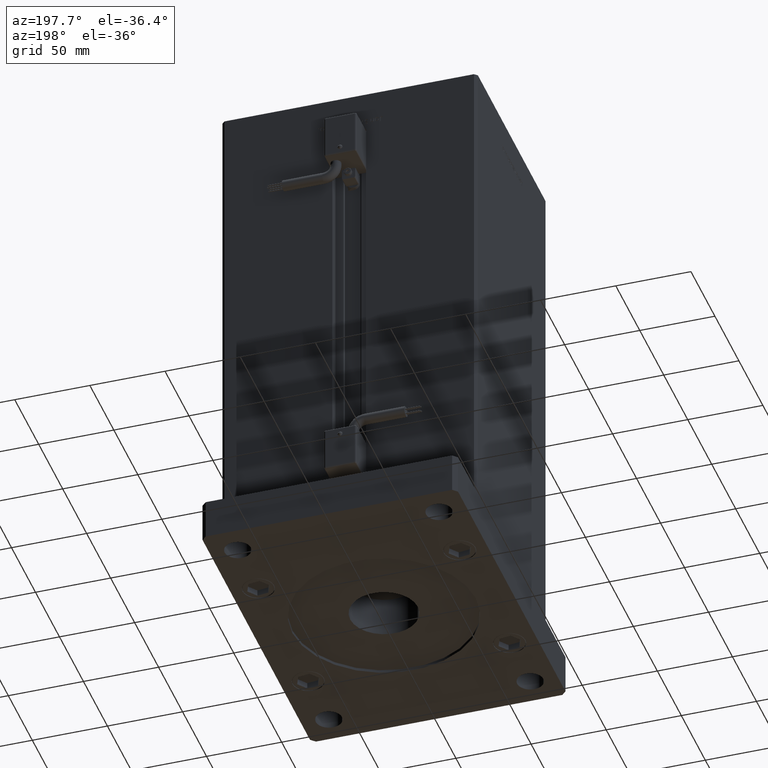
[diagram: clean part render]
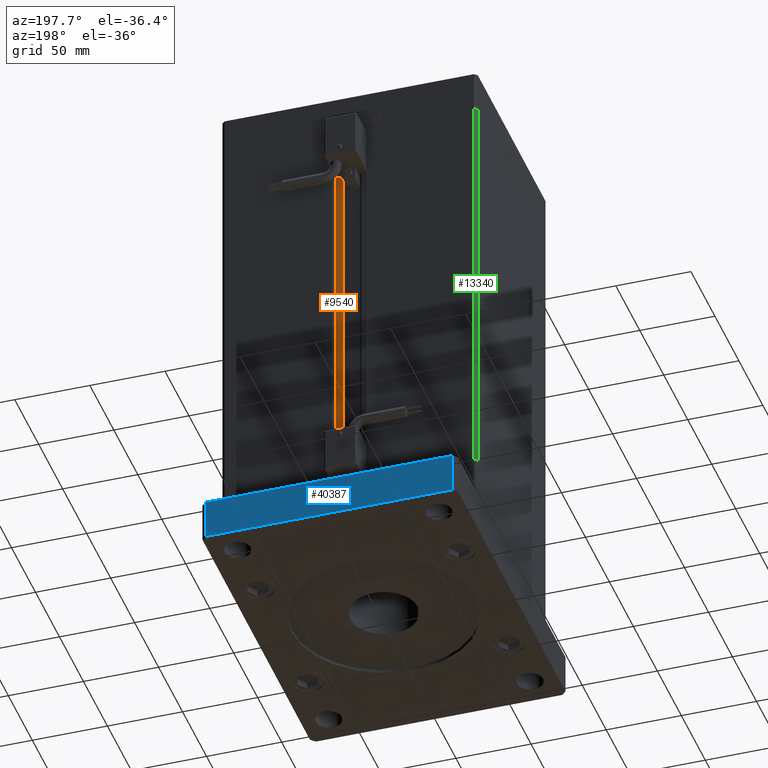
[diagram: same view with three faces highlighted in distinct colors, each labeled with its STEP entity id]
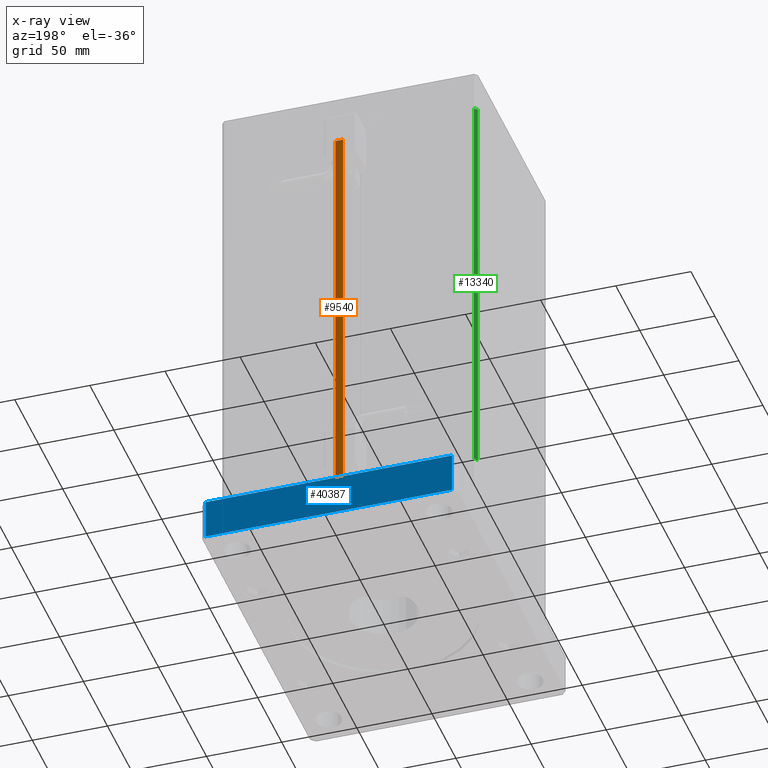
[diagram: x-ray of the same camera — body ghosted, the three highlighted faces saturated]
A machine part, auxiliary view with three faces highlighted in distinct colors.
The next image is the same camera in x-ray (body ghosted, the three faces saturated) — at least one of them is partly hidden behind the body in this view.
Their STEP definitions:

[orange] entity #9540 — the highlighted planar face has unit normal (-0, -1, 0).
#273 = VERTEX_POINT ( 'NONE', #3161 ) ;
#1353 = DIRECTION ( 'NONE',  ( -2.739037067332160936E-15, -1.000000000000000000, 0.000000000000000000 ) ) ;
#1769 = EDGE_CURVE ( 'NONE', #27092, #273, #37226, .T. ) ;
#2739 = VECTOR ( 'NONE', #46239, 1000.000000000000000 ) ;
#3161 = CARTESIAN_POINT ( 'NONE',  ( 11.25000000000000178, 65.99999999999997158, 0.000000000000000000 ) ) ;
#4197 = ORIENTED_EDGE ( 'NONE', *, *, #39125, .F. ) ;
#5029 = EDGE_CURVE ( 'NONE', #40482, #15717, #43559, .T. ) ;
#8461 = CARTESIAN_POINT ( 'NONE',  ( 11.25000000000000178, 65.99999999999997158, 276.0000000000000000 ) ) ;
#9540 = ADVANCED_FACE ( 'NONE', ( #53806 ), #35566, .F. ) ;
#10176 = DIRECTION ( 'NONE',  ( 1.000000000000000000, -2.739037067332160936E-15, 0.000000000000000000 ) ) ;
#13864 = CARTESIAN_POINT ( 'NONE',  ( 6.183333333334001480, 65.99999999999998579, 0.000000000000000000 ) ) ;
#14232 = ORIENTED_EDGE ( 'NONE', *, *, #25278, .T. ) ;
#14541 = ORIENTED_EDGE ( 'NONE', *, *, #1769, .F. ) ;
#15270 = DIRECTION ( 'NONE',  ( 1.000000000000000000, -2.739037067332160936E-15, 0.000000000000000000 ) ) ;
#15717 = VERTEX_POINT ( 'NONE', #51230 ) ;
#16801 = LINE ( 'NONE', #56147, #53357 ) ;
#18681 = CARTESIAN_POINT ( 'NONE',  ( 6.183333333334001480, 65.99999999999998579, 0.000000000000000000 ) ) ;
#23706 = LINE ( 'NONE', #32555, #2739 ) ;
#25278 = EDGE_CURVE ( 'NONE', #27092, #15717, #16801, .T. ) ;
#27092 = VERTEX_POINT ( 'NONE', #13864 ) ;
#29649 = DIRECTION ( 'NONE',  ( -0.000000000000000000, -0.000000000000000000, 1.000000000000000000 ) ) ;
#32136 = CARTESIAN_POINT ( 'NONE',  ( 6.183333333334001480, 65.99999999999998579, 0.000000000000000000 ) ) ;
#32555 = CARTESIAN_POINT ( 'NONE',  ( 11.25000000000000178, 65.99999999999997158, 0.000000000000000000 ) ) ;
#34684 = AXIS2_PLACEMENT_3D ( 'NONE', #32136, #1353, #10176 ) ;
#34811 = ORIENTED_EDGE ( 'NONE', *, *, #5029, .F. ) ;
#35566 = PLANE ( 'NONE',  #34684 ) ;
#37226 = LINE ( 'NONE', #18681, #47210 ) ;
#39125 = EDGE_CURVE ( 'NONE', #273, #40482, #23706, .T. ) ;
#40482 = VERTEX_POINT ( 'NONE', #8461 ) ;
#43559 = LINE ( 'NONE', #52665, #45491 ) ;
#44107 = DIRECTION ( 'NONE',  ( -1.000000000000000000, 2.739037067332160936E-15, 0.000000000000000000 ) ) ;
#45491 = VECTOR ( 'NONE', #44107, 1000.000000000000000 ) ;
#46239 = DIRECTION ( 'NONE',  ( -0.000000000000000000, -0.000000000000000000, 1.000000000000000000 ) ) ;
#47210 = VECTOR ( 'NONE', #15270, 1000.000000000000000 ) ;
#48230 = EDGE_LOOP ( 'NONE', ( #4197, #14541, #14232, #34811 ) ) ;
#51230 = CARTESIAN_POINT ( 'NONE',  ( 6.183333333334002369, 65.99999999999998579, 276.0000000000000000 ) ) ;
#52665 = CARTESIAN_POINT ( 'NONE',  ( 1.807764464439226107E-13, 66.00000000000000000, 276.0000000000000000 ) ) ;
#53357 = VECTOR ( 'NONE', #29649, 1000.000000000000000 ) ;
#53806 = FACE_OUTER_BOUND ( 'NONE', #48230, .T. ) ;
#56147 = CARTESIAN_POINT ( 'NONE',  ( 6.183333333334001480, 65.99999999999998579, 0.000000000000000000 ) ) ;

[blue] entity #40387 — the highlighted planar face has unit normal (0, -1, 0).
#2113 = CARTESIAN_POINT ( 'NONE',  ( 82.00000000000004263, 115.0000000000000284, 0.000000000000000000 ) ) ;
#2402 = EDGE_CURVE ( 'NONE', #12992, #50836, #45647, .T. ) ;
#2516 = PLANE ( 'NONE',  #49239 ) ;
#3421 = CARTESIAN_POINT ( 'NONE',  ( 82.00000000000004263, 115.0000000000000284, 27.00000000000000000 ) ) ;
#4783 = EDGE_CURVE ( 'NONE', #50836, #37074, #41596, .T. ) ;
#5353 = EDGE_CURVE ( 'NONE', #25829, #37074, #44884, .T. ) ;
#5365 = VECTOR ( 'NONE', #19635, 1000.000000000000000 ) ;
#5403 = ORIENTED_EDGE ( 'NONE', *, *, #2402, .F. ) ;
#6708 = LINE ( 'NONE', #15840, #49589 ) ;
#11909 = CARTESIAN_POINT ( 'NONE',  ( 82.00000000000004263, 115.0000000000000284, 27.00000000000000000 ) ) ;
#12992 = VERTEX_POINT ( 'NONE', #43615 ) ;
#15840 = CARTESIAN_POINT ( 'NONE',  ( 82.00000000000004263, 115.0000000000000284, 27.00000000000000000 ) ) ;
#16191 = DIRECTION ( 'NONE',  ( 1.692413147294444984E-16, -1.000000000000000000, 0.000000000000000000 ) ) ;
#16259 = CARTESIAN_POINT ( 'NONE',  ( 82.00000000000004263, 115.0000000000000284, 0.000000000000000000 ) ) ;
#19635 = DIRECTION ( 'NONE',  ( -0.000000000000000000, -0.000000000000000000, -1.000000000000000000 ) ) ;
#19837 = DIRECTION ( 'NONE',  ( -0.000000000000000000, -0.000000000000000000, -1.000000000000000000 ) ) ;
#21657 = EDGE_CURVE ( 'NONE', #12992, #25829, #6708, .T. ) ;
#21801 = CARTESIAN_POINT ( 'NONE',  ( -82.00000000000002842, 115.0000000000000000, 0.000000000000000000 ) ) ;
#23207 = DIRECTION ( 'NONE',  ( -1.000000000000000000, -1.692413147294444984E-16, 0.000000000000000000 ) ) ;
#24184 = DIRECTION ( 'NONE',  ( 1.000000000000000000, 1.692413147294444984E-16, 0.000000000000000000 ) ) ;
#25777 = CARTESIAN_POINT ( 'NONE',  ( -82.00000000000002842, 115.0000000000000000, 27.00000000000000000 ) ) ;
#25829 = VERTEX_POINT ( 'NONE', #16259 ) ;
#33655 = DIRECTION ( 'NONE',  ( -1.000000000000000000, -1.692413147294444984E-16, 0.000000000000000000 ) ) ;
#36273 = VECTOR ( 'NONE', #33655, 1000.000000000000000 ) ;
#36329 = EDGE_LOOP ( 'NONE', ( #46265, #53409, #5403, #45305 ) ) ;
#37074 = VERTEX_POINT ( 'NONE', #21801 ) ;
#40387 = ADVANCED_FACE ( 'NONE', ( #55255 ), #2516, .F. ) ;
#40459 = CARTESIAN_POINT ( 'NONE',  ( -82.00000000000002842, 115.0000000000000000, 27.00000000000000000 ) ) ;
#41596 = LINE ( 'NONE', #40459, #5365 ) ;
#43615 = CARTESIAN_POINT ( 'NONE',  ( 82.00000000000004263, 115.0000000000000284, 27.00000000000000000 ) ) ;
#44583 = VECTOR ( 'NONE', #23207, 1000.000000000000000 ) ;
#44884 = LINE ( 'NONE', #2113, #44583 ) ;
#45305 = ORIENTED_EDGE ( 'NONE', *, *, #21657, .T. ) ;
#45647 = LINE ( 'NONE', #3421, #36273 ) ;
#46265 = ORIENTED_EDGE ( 'NONE', *, *, #5353, .T. ) ;
#49239 = AXIS2_PLACEMENT_3D ( 'NONE', #11909, #16191, #24184 ) ;
#49589 = VECTOR ( 'NONE', #19837, 1000.000000000000000 ) ;
#50836 = VERTEX_POINT ( 'NONE', #25777 ) ;
#53409 = ORIENTED_EDGE ( 'NONE', *, *, #4783, .F. ) ;
#55255 = FACE_OUTER_BOUND ( 'NONE', #36329, .T. ) ;

[green] entity #13340 — the highlighted planar face has unit normal (0.7071, -0.7071, 0).
#85 = CARTESIAN_POINT ( 'NONE',  ( -83.00000000000001421, 72.49999999999998579, 276.0000000000000000 ) ) ;
#921 = DIRECTION ( 'NONE',  ( -0.7071067811865474617, -0.7071067811865474617, 0.000000000000000000 ) ) ;
#1771 = ORIENTED_EDGE ( 'NONE', *, *, #14789, .F. ) ;
#4195 = DIRECTION ( 'NONE',  ( 0.7071067811865474617, 0.7071067811865474617, 0.000000000000000000 ) ) ;
#7633 = FACE_OUTER_BOUND ( 'NONE', #23161, .T. ) ;
#7761 = DIRECTION ( 'NONE',  ( -0.000000000000000000, -0.000000000000000000, -1.000000000000000000 ) ) ;
#13340 = ADVANCED_FACE ( 'NONE', ( #7633 ), #30160, .F. ) ;
#13604 = DIRECTION ( 'NONE',  ( -0.7071067811865474617, -0.7071067811865474617, 0.000000000000000000 ) ) ;
#14022 = LINE ( 'NONE', #85, #27483 ) ;
#14789 = EDGE_CURVE ( 'NONE', #31471, #27590, #14022, .T. ) ;
#17594 = DIRECTION ( 'NONE',  ( 0.7071067811865475727, -0.7071067811865475727, 0.000000000000000000 ) ) ;
#19261 = AXIS2_PLACEMENT_3D ( 'NONE', #43260, #17594, #4195 ) ;
#21114 = CARTESIAN_POINT ( 'NONE',  ( -85.00000000000001421, 70.49999999999998579, 276.0000000000000000 ) ) ;
#21991 = EDGE_CURVE ( 'NONE', #31471, #30566, #25453, .T. ) ;
#23161 = EDGE_LOOP ( 'NONE', ( #35631, #26016, #1771, #55884 ) ) ;
#25453 = LINE ( 'NONE', #42013, #34161 ) ;
#26016 = ORIENTED_EDGE ( 'NONE', *, *, #31117, .F. ) ;
#27483 = VECTOR ( 'NONE', #921, 1000.000000000000114 ) ;
#27590 = VERTEX_POINT ( 'NONE', #21114 ) ;
#30160 = PLANE ( 'NONE',  #19261 ) ;
#30566 = VERTEX_POINT ( 'NONE', #40414 ) ;
#31117 = EDGE_CURVE ( 'NONE', #27590, #31955, #53609, .T. ) ;
#31471 = VERTEX_POINT ( 'NONE', #45226 ) ;
#31955 = VERTEX_POINT ( 'NONE', #35956 ) ;
#33508 = EDGE_CURVE ( 'NONE', #30566, #31955, #36114, .T. ) ;
#34161 = VECTOR ( 'NONE', #7761, 1000.000000000000000 ) ;
#35631 = ORIENTED_EDGE ( 'NONE', *, *, #33508, .T. ) ;
#35956 = CARTESIAN_POINT ( 'NONE',  ( -85.00000000000001421, 70.49999999999998579, 0.000000000000000000 ) ) ;
#36114 = LINE ( 'NONE', #52673, #49912 ) ;
#36785 = CARTESIAN_POINT ( 'NONE',  ( -85.00000000000001421, 70.49999999999998579, 276.0000000000000000 ) ) ;
#40414 = CARTESIAN_POINT ( 'NONE',  ( -83.00000000000001421, 72.49999999999998579, 0.000000000000000000 ) ) ;
#42013 = CARTESIAN_POINT ( 'NONE',  ( -83.00000000000001421, 72.49999999999998579, 276.0000000000000000 ) ) ;
#43260 = CARTESIAN_POINT ( 'NONE',  ( -83.00000000000001421, 72.49999999999998579, 276.0000000000000000 ) ) ;
#45226 = CARTESIAN_POINT ( 'NONE',  ( -83.00000000000001421, 72.49999999999998579, 276.0000000000000000 ) ) ;
#46219 = VECTOR ( 'NONE', #54456, 1000.000000000000000 ) ;
#49912 = VECTOR ( 'NONE', #13604, 1000.000000000000114 ) ;
#52673 = CARTESIAN_POINT ( 'NONE',  ( -83.00000000000001421, 72.49999999999998579, 0.000000000000000000 ) ) ;
#53609 = LINE ( 'NONE', #36785, #46219 ) ;
#54456 = DIRECTION ( 'NONE',  ( -0.000000000000000000, -0.000000000000000000, -1.000000000000000000 ) ) ;
#55884 = ORIENTED_EDGE ( 'NONE', *, *, #21991, .T. ) ;